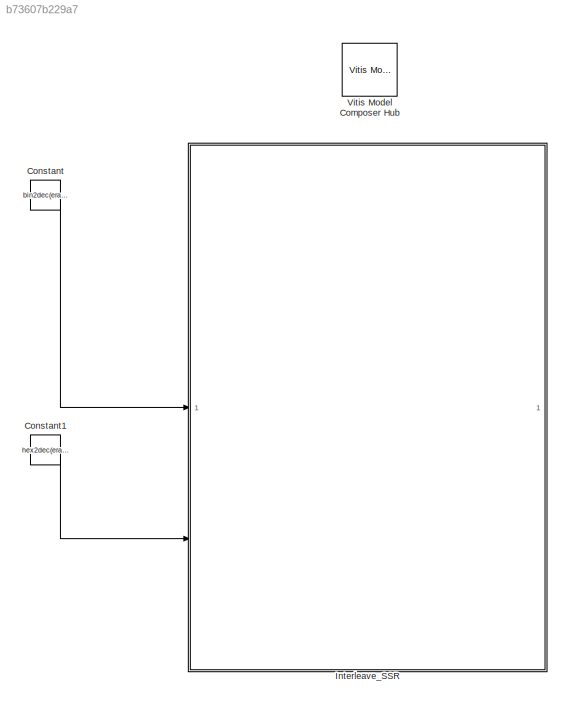
MODEL slx_b73607b229a7
KIND model
CONFIG AbsTol = auto
CONFIG EnableMultiTasking = off
CONFIG FixedStep = auto
CONFIG MaxStep = auto
CONFIG MinStep = auto
CONFIG RelTol = 1e-3
CONFIG SampleTimeConstraint = Unconstrained
CONFIG SolverName = VariableStepAuto
CONFIG StartTime = 0.0
CONFIG StopTime = 5/128e6
BLOCK [Constant] Constant
  Value = bin2dec(erase(erase("1001-1111-1111-1111_1111-1001-1111-1111_1111-1111-1001-1111_1111-1111-1111-1001", "_"), "-"))
BLOCK [Constant] Constant1
  Value = hex2dec(erase("0000_0000_0000_0000", "_"))
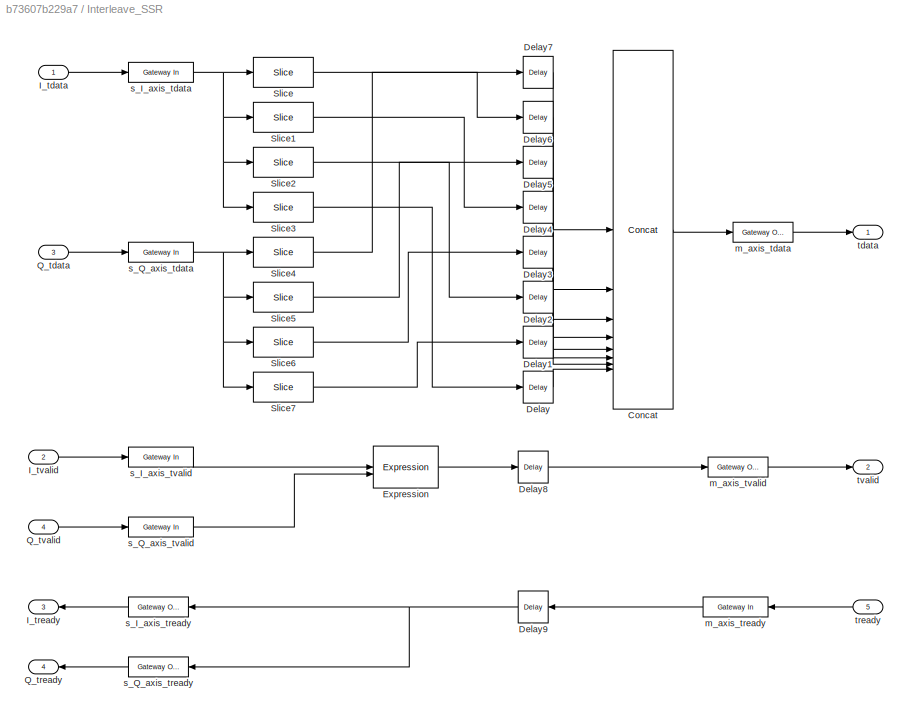
BLOCK [SubSystem] Interleave_SSR
  PortSchema = {"entries":[{"content":{"sides":[{"content":{"connectorIds":["In1","In2","Out3","In3","In4","Out4"]},"type":"ConnectorPlacement.EquallySpacedRectSide","uuid":"eb74909a-28d6-49bb-8ba1-8d6247087b66"},{"content":{"connectorIds":["Out1","In5","Out2"],"side":"RIGHT"},"type":"ConnectorPlacement.EquallySpacedRectSide","uuid":"e220c643-32b2-4718-b969-1ae45378effa"},{"content":{"side":"TOP"},"type":"Connec...<+267ch>
BLOCK [Reference] Interleave_SSR/Concat  REF=hdlBasic/Concat
  SourceBlock = hdlBasic/Concat
  SourceType = Bus Concatenator Block
BLOCK [Reference] Interleave_SSR/Delay  REF=hdlBasic/Delay
  SourceBlock = hdlBasic/Delay
  SourceType = Delay Block
BLOCK [Reference] Interleave_SSR/Delay1  REF=hdlBasic/Delay
  SourceBlock = hdlBasic/Delay
  SourceType = Delay Block
BLOCK [Reference] Interleave_SSR/Delay2  REF=hdlBasic/Delay
  SourceBlock = hdlBasic/Delay
  SourceType = Delay Block
BLOCK [Reference] Interleave_SSR/Delay3  REF=hdlBasic/Delay
  SourceBlock = hdlBasic/Delay
  SourceType = Delay Block
BLOCK [Reference] Interleave_SSR/Delay4  REF=hdlBasic/Delay
  SourceBlock = hdlBasic/Delay
  SourceType = Delay Block
BLOCK [Reference] Interleave_SSR/Delay5  REF=hdlBasic/Delay
  SourceBlock = hdlBasic/Delay
  SourceType = Delay Block
BLOCK [Reference] Interleave_SSR/Delay6  REF=hdlBasic/Delay
  SourceBlock = hdlBasic/Delay
  SourceType = Delay Block
BLOCK [Reference] Interleave_SSR/Delay7  REF=hdlBasic/Delay
  SourceBlock = hdlBasic/Delay
  SourceType = Delay Block
BLOCK [Reference] Interleave_SSR/Delay8  REF=hdlBasic/Delay
  SourceBlock = hdlBasic/Delay
  SourceType = Delay Block
BLOCK [Reference] Interleave_SSR/Delay9  REF=hdlBasic/Delay
  SourceBlock = hdlBasic/Delay
  SourceType = Delay Block
BLOCK [Reference] Interleave_SSR/Expression  REF=hdlBasic/Expression
  SourceBlock = hdlBasic/Expression
  SourceType = Bitwise Expression Evaluator Block
BLOCK [Inport] Interleave_SSR/I_tdata
BLOCK [Outport] Interleave_SSR/I_tready
  Port = 3
BLOCK [Inport] Interleave_SSR/I_tvalid
  Port = 2
BLOCK [Inport] Interleave_SSR/Q_tdata
  Port = 3
BLOCK [Outport] Interleave_SSR/Q_tready
  Port = 4
BLOCK [Inport] Interleave_SSR/Q_tvalid
  Port = 4
BLOCK [Reference] Interleave_SSR/Slice  REF=hdlBasic/Slice
  SourceBlock = hdlBasic/Slice
  SourceType = Bit Slice Extractor Block
BLOCK [Reference] Interleave_SSR/Slice1  REF=hdlBasic/Slice
  SourceBlock = hdlBasic/Slice
  SourceType = Bit Slice Extractor Block
BLOCK [Reference] Interleave_SSR/Slice2  REF=hdlBasic/Slice
  SourceBlock = hdlBasic/Slice
  SourceType = Bit Slice Extractor Block
BLOCK [Reference] Interleave_SSR/Slice3  REF=hdlBasic/Slice
  SourceBlock = hdlBasic/Slice
  SourceType = Bit Slice Extractor Block
BLOCK [Reference] Interleave_SSR/Slice4  REF=hdlBasic/Slice
  SourceBlock = hdlBasic/Slice
  SourceType = Bit Slice Extractor Block
BLOCK [Reference] Interleave_SSR/Slice5  REF=hdlBasic/Slice
  SourceBlock = hdlBasic/Slice
  SourceType = Bit Slice Extractor Block
BLOCK [Reference] Interleave_SSR/Slice6  REF=hdlBasic/Slice
  SourceBlock = hdlBasic/Slice
  SourceType = Bit Slice Extractor Block
BLOCK [Reference] Interleave_SSR/Slice7  REF=hdlBasic/Slice
  SourceBlock = hdlBasic/Slice
  SourceType = Bit Slice Extractor Block
BLOCK [Reference] Interleave_SSR/m_axis_tdata  REF=hdlBasic/Gateway Out
  SourceBlock = hdlBasic/Gateway Out
  SourceType = Gateway Out Block
BLOCK [Reference] Interleave_SSR/m_axis_tready  REF=hdlBasic/Gateway In
  SourceBlock = hdlBasic/Gateway In
  SourceType = Gateway In Block
BLOCK [Reference] Interleave_SSR/m_axis_tvalid  REF=hdlBasic/Gateway Out
  SourceBlock = hdlBasic/Gateway Out
  SourceType = Gateway Out Block
BLOCK [Reference] Interleave_SSR/s_I_axis_tdata  REF=hdlBasic/Gateway In
  SourceBlock = hdlBasic/Gateway In
  SourceType = Gateway In Block
BLOCK [Reference] Interleave_SSR/s_I_axis_tready  REF=hdlBasic/Gateway Out
  SourceBlock = hdlBasic/Gateway Out
  SourceType = Gateway Out Block
BLOCK [Reference] Interleave_SSR/s_I_axis_tvalid  REF=hdlBasic/Gateway In
  SourceBlock = hdlBasic/Gateway In
  SourceType = Gateway In Block
BLOCK [Reference] Interleave_SSR/s_Q_axis_tdata  REF=hdlBasic/Gateway In
  SourceBlock = hdlBasic/Gateway In
  SourceType = Gateway In Block
BLOCK [Reference] Interleave_SSR/s_Q_axis_tready  REF=hdlBasic/Gateway Out
  SourceBlock = hdlBasic/Gateway Out
  SourceType = Gateway Out Block
BLOCK [Reference] Interleave_SSR/s_Q_axis_tvalid  REF=hdlBasic/Gateway In
  SourceBlock = hdlBasic/Gateway In
  SourceType = Gateway In Block
BLOCK [Outport] Interleave_SSR/tdata
BLOCK [Inport] Interleave_SSR/tready
  Port = 5
BLOCK [Outport] Interleave_SSR/tvalid
  Port = 2
BLOCK [Reference] Vitis Model Composer Hub  REF=vmcUtilities/Vitis Model Composer Hub
  SourceBlock = vmcUtilities/Vitis Model Composer Hub
  SourceType = VMC Hub
  Tag = genX
  UserDataPersistent = on
LINE Constant1:1 -> Interleave_SSR:3
LINE Constant:1 -> Interleave_SSR:1
LINE Interleave_SSR/Concat:1 -> Interleave_SSR/m_axis_tdata:1
LINE Interleave_SSR/Delay1:1 -> Interleave_SSR/Concat:7
LINE Interleave_SSR/Delay2:1 -> Interleave_SSR/Concat:6
LINE Interleave_SSR/Delay3:1 -> Interleave_SSR/Concat:5
LINE Interleave_SSR/Delay4:1 -> Interleave_SSR/Concat:4
LINE Interleave_SSR/Delay5:1 -> Interleave_SSR/Concat:3
LINE Interleave_SSR/Delay6:1 -> Interleave_SSR/Concat:2
LINE Interleave_SSR/Delay7:1 -> Interleave_SSR/Concat:1
LINE Interleave_SSR/Delay8:1 -> Interleave_SSR/m_axis_tvalid:1
NET Interleave_SSR/Delay9:1 -> Interleave_SSR/s_I_axis_tready:1, Interleave_SSR/s_Q_axis_tready:1
LINE Interleave_SSR/Delay:1 -> Interleave_SSR/Concat:8
LINE Interleave_SSR/Expression:1 -> Interleave_SSR/Delay8:1
LINE Interleave_SSR/I_tdata:1 -> Interleave_SSR/s_I_axis_tdata:1
LINE Interleave_SSR/I_tvalid:1 -> Interleave_SSR/s_I_axis_tvalid:1
LINE Interleave_SSR/Q_tdata:1 -> Interleave_SSR/s_Q_axis_tdata:1
LINE Interleave_SSR/Q_tvalid:1 -> Interleave_SSR/s_Q_axis_tvalid:1
LINE Interleave_SSR/Slice1:1 -> Interleave_SSR/Delay4:1
LINE Interleave_SSR/Slice2:1 -> Interleave_SSR/Delay2:1
LINE Interleave_SSR/Slice3:1 -> Interleave_SSR/Delay:1
LINE Interleave_SSR/Slice4:1 -> Interleave_SSR/Delay7:1
LINE Interleave_SSR/Slice5:1 -> Interleave_SSR/Delay5:1
LINE Interleave_SSR/Slice6:1 -> Interleave_SSR/Delay3:1
LINE Interleave_SSR/Slice7:1 -> Interleave_SSR/Delay1:1
LINE Interleave_SSR/Slice:1 -> Interleave_SSR/Delay6:1
LINE Interleave_SSR/m_axis_tdata:1 -> Interleave_SSR/tdata:1
LINE Interleave_SSR/m_axis_tready:1 -> Interleave_SSR/Delay9:1
LINE Interleave_SSR/m_axis_tvalid:1 -> Interleave_SSR/tvalid:1
NET Interleave_SSR/s_I_axis_tdata:1 -> Interleave_SSR/Slice1:1, Interleave_SSR/Slice2:1, Interleave_SSR/Slice3:1, Interleave_SSR/Slice:1
LINE Interleave_SSR/s_I_axis_tready:1 -> Interleave_SSR/I_tready:1
LINE Interleave_SSR/s_I_axis_tvalid:1 -> Interleave_SSR/Expression:1
NET Interleave_SSR/s_Q_axis_tdata:1 -> Interleave_SSR/Slice4:1, Interleave_SSR/Slice5:1, Interleave_SSR/Slice6:1, Interleave_SSR/Slice7:1
LINE Interleave_SSR/s_Q_axis_tready:1 -> Interleave_SSR/Q_tready:1
LINE Interleave_SSR/s_Q_axis_tvalid:1 -> Interleave_SSR/Expression:2
LINE Interleave_SSR/tready:1 -> Interleave_SSR/m_axis_tready:1
note: NET lines group one-source signal fan-out (src -> all destinations, sorted); 1:1 wires keep LINE
